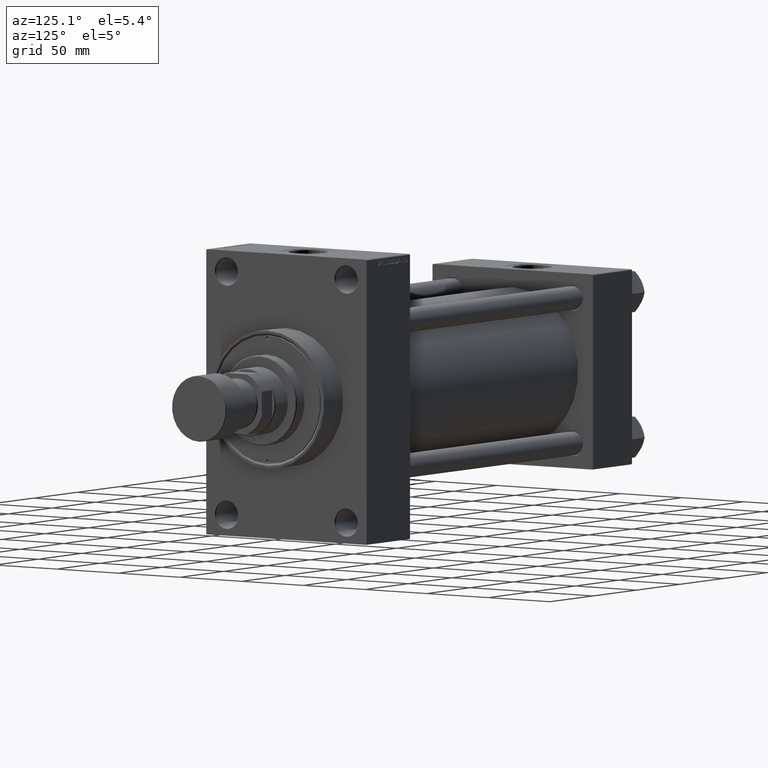
[diagram: clean part render]
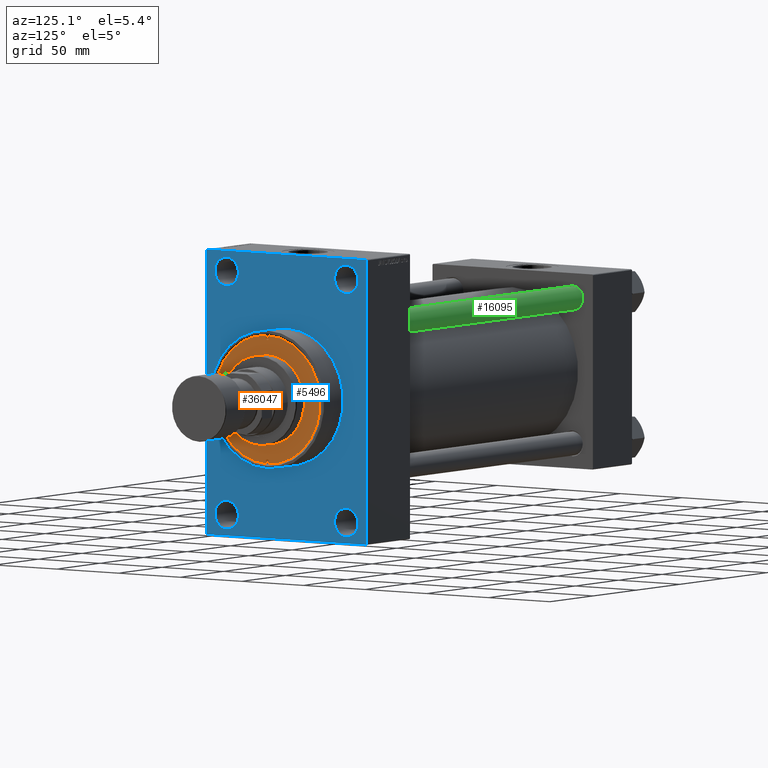
[diagram: same view with three faces highlighted in distinct colors, each labeled with its STEP entity id]
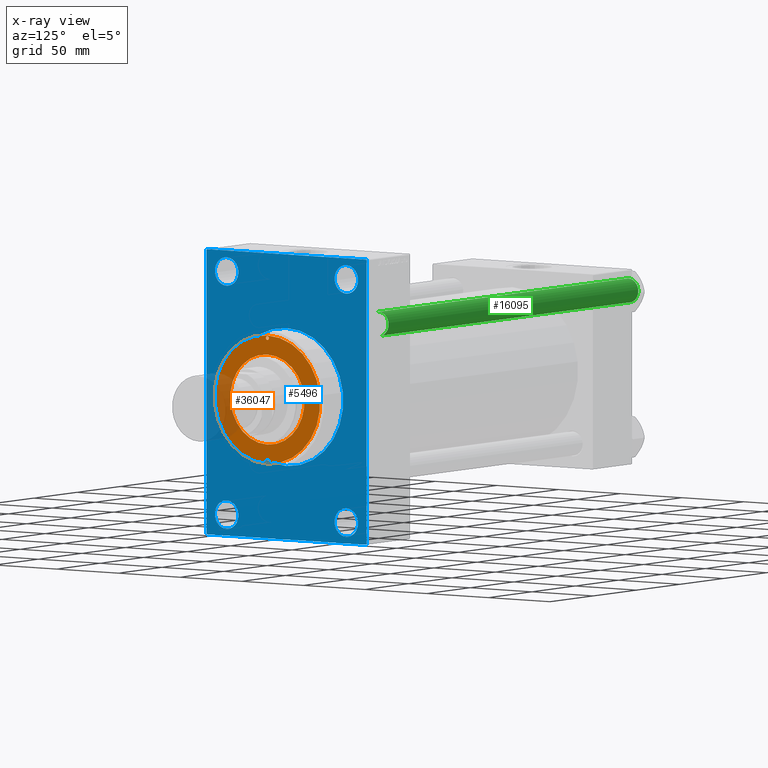
[diagram: x-ray of the same camera — body ghosted, the three highlighted faces saturated]
A machine part, auxiliary view with three faces highlighted in distinct colors.
The next image is the same camera in x-ray (body ghosted, the three faces saturated) — at least one of them is partly hidden behind the body in this view.
Their STEP definitions:

[orange] entity #36047 — the highlighted planar face has unit normal (1, -0, -0).
#758 = CARTESIAN_POINT ( 'NONE',  ( -42.75000000000000000, 0.000000000000000000, 43.25999999999999801 ) ) ;
#955 = DIRECTION ( 'NONE',  ( -0.000000000000000000, -0.000000000000000000, 1.000000000000000000 ) ) ;
#1060 = CARTESIAN_POINT ( 'NONE',  ( 42.75000000000000000, 5.235365066354935472E-15, 43.25999999999999801 ) ) ;
#1128 = AXIS2_PLACEMENT_3D ( 'NONE', #13668, #46889, #28569 ) ;
#1364 = VERTEX_POINT ( 'NONE', #25501 ) ;
#1803 = CARTESIAN_POINT ( 'NONE',  ( 41.00000000000000000, 0.000000000000000000, 43.25999999999999801 ) ) ;
#1909 = DIRECTION ( 'NONE',  ( 1.000000000000000000, 0.000000000000000000, 0.000000000000000000 ) ) ;
#2042 = AXIS2_PLACEMENT_3D ( 'NONE', #13963, #2969, #18339 ) ;
#2777 = DIRECTION ( 'NONE',  ( 0.000000000000000000, 0.000000000000000000, 1.000000000000000000 ) ) ;
#2969 = DIRECTION ( 'NONE',  ( -0.000000000000000000, -0.000000000000000000, 1.000000000000000000 ) ) ;
#3258 = CARTESIAN_POINT ( 'NONE',  ( 0.000000000000000000, 0.000000000000000000, 43.25999999999999801 ) ) ;
#3575 = AXIS2_PLACEMENT_3D ( 'NONE', #1803, #27951, #27716 ) ;
#4006 = CARTESIAN_POINT ( 'NONE',  ( -39.75000000000000000, 0.000000000000000000, 43.25999999999999801 ) ) ;
#4242 = ORIENTED_EDGE ( 'NONE', *, *, #18045, .F. ) ;
#4300 = CARTESIAN_POINT ( 'NONE',  ( -41.00000000000000000, 0.000000000000000000, 43.25999999999999801 ) ) ;
#6127 = CARTESIAN_POINT ( 'NONE',  ( 42.25000000000000000, 0.000000000000000000, 43.25999999999999801 ) ) ;
#7196 = EDGE_LOOP ( 'NONE', ( #18963, #24049 ) ) ;
#8270 = VERTEX_POINT ( 'NONE', #1060 ) ;
#8984 = ORIENTED_EDGE ( 'NONE', *, *, #13227, .T. ) ;
#9012 = CARTESIAN_POINT ( 'NONE',  ( 41.00000000000000000, 0.000000000000000000, 43.25999999999999801 ) ) ;
#10615 = CARTESIAN_POINT ( 'NONE',  ( -42.25000000000000000, 1.530808498934193050E-16, 43.25999999999999801 ) ) ;
#11150 = DIRECTION ( 'NONE',  ( -0.000000000000000000, -0.000000000000000000, 1.000000000000000000 ) ) ;
#11169 = FACE_OUTER_BOUND ( 'NONE', #26174, .T. ) ;
#11322 = EDGE_LOOP ( 'NONE', ( #31291, #38749 ) ) ;
#11348 = EDGE_CURVE ( 'NONE', #11502, #1364, #18217, .T. ) ;
#11502 = VERTEX_POINT ( 'NONE', #37741 ) ;
#12943 = CIRCLE ( 'NONE', #13722, 1.250000000000001110 ) ;
#13227 = EDGE_CURVE ( 'NONE', #8270, #36603, #15946, .T. ) ;
#13265 = VERTEX_POINT ( 'NONE', #24665 ) ;
#13668 = CARTESIAN_POINT ( 'NONE',  ( 0.000000000000000000, 0.000000000000000000, 43.25999999999999801 ) ) ;
#13722 = AXIS2_PLACEMENT_3D ( 'NONE', #4300, #11150, #15768 ) ;
#13963 = CARTESIAN_POINT ( 'NONE',  ( -41.00000000000000000, 0.000000000000000000, 43.25999999999999801 ) ) ;
#14315 = AXIS2_PLACEMENT_3D ( 'NONE', #44378, #33369, #25575 ) ;
#14403 = AXIS2_PLACEMENT_3D ( 'NONE', #3258, #2777, #22069 ) ;
#15768 = DIRECTION ( 'NONE',  ( 1.000000000000000000, 0.000000000000000000, 0.000000000000000000 ) ) ;
#15946 = CIRCLE ( 'NONE', #1128, 42.75000000000000000 ) ;
#16508 = EDGE_LOOP ( 'NONE', ( #4242, #46329 ) ) ;
#16816 = EDGE_CURVE ( 'NONE', #13265, #24211, #48045, .T. ) ;
#18045 = EDGE_CURVE ( 'NONE', #22878, #20358, #23103, .T. ) ;
#18169 = AXIS2_PLACEMENT_3D ( 'NONE', #37310, #24792, #36264 ) ;
#18217 = CIRCLE ( 'NONE', #14315, 30.00000000000000000 ) ;
#18339 = DIRECTION ( 'NONE',  ( 1.000000000000000000, 0.000000000000000000, 0.000000000000000000 ) ) ;
#18963 = ORIENTED_EDGE ( 'NONE', *, *, #43111, .F. ) ;
#20169 = EDGE_CURVE ( 'NONE', #20358, #22878, #12943, .T. ) ;
#20358 = VERTEX_POINT ( 'NONE', #10615 ) ;
#22069 = DIRECTION ( 'NONE',  ( 1.000000000000000000, 0.000000000000000000, 0.000000000000000000 ) ) ;
#22878 = VERTEX_POINT ( 'NONE', #4006 ) ;
#23103 = CIRCLE ( 'NONE', #2042, 1.250000000000001110 ) ;
#24049 = ORIENTED_EDGE ( 'NONE', *, *, #11348, .F. ) ;
#24211 = VERTEX_POINT ( 'NONE', #6127 ) ;
#24632 = DIRECTION ( 'NONE',  ( 0.000000000000000000, 0.000000000000000000, 1.000000000000000000 ) ) ;
#24665 = CARTESIAN_POINT ( 'NONE',  ( 39.75000000000000000, 1.530808498934193050E-16, 43.25999999999999801 ) ) ;
#24792 = DIRECTION ( 'NONE',  ( 0.000000000000000000, 0.000000000000000000, 1.000000000000000000 ) ) ;
#24956 = CIRCLE ( 'NONE', #32725, 1.250000000000001110 ) ;
#25501 = CARTESIAN_POINT ( 'NONE',  ( -30.00000000000000000, 0.000000000000000000, 43.25999999999999801 ) ) ;
#25575 = DIRECTION ( 'NONE',  ( 1.000000000000000000, 0.000000000000000000, 0.000000000000000000 ) ) ;
#26174 = EDGE_LOOP ( 'NONE', ( #37816, #8984 ) ) ;
#26989 = FACE_BOUND ( 'NONE', #16508, .T. ) ;
#27351 = DIRECTION ( 'NONE',  ( 1.000000000000000000, 0.000000000000000000, 0.000000000000000000 ) ) ;
#27716 = DIRECTION ( 'NONE',  ( 1.000000000000000000, 0.000000000000000000, 0.000000000000000000 ) ) ;
#27823 = CARTESIAN_POINT ( 'NONE',  ( 0.000000000000000000, 0.000000000000000000, 43.25999999999999801 ) ) ;
#27951 = DIRECTION ( 'NONE',  ( -0.000000000000000000, -0.000000000000000000, 1.000000000000000000 ) ) ;
#28569 = DIRECTION ( 'NONE',  ( 1.000000000000000000, 0.000000000000000000, 0.000000000000000000 ) ) ;
#29167 = EDGE_CURVE ( 'NONE', #24211, #13265, #24956, .T. ) ;
#31291 = ORIENTED_EDGE ( 'NONE', *, *, #29167, .F. ) ;
#32725 = AXIS2_PLACEMENT_3D ( 'NONE', #9012, #955, #27351 ) ;
#33369 = DIRECTION ( 'NONE',  ( 0.000000000000000000, 0.000000000000000000, 1.000000000000000000 ) ) ;
#36047 = ADVANCED_FACE ( 'NONE', ( #26989, #40735, #44651, #11169 ), #40980, .T. ) ;
#36264 = DIRECTION ( 'NONE',  ( 1.000000000000000000, 0.000000000000000000, -0.000000000000000000 ) ) ;
#36379 = CIRCLE ( 'NONE', #45762, 42.75000000000000000 ) ;
#36603 = VERTEX_POINT ( 'NONE', #758 ) ;
#37310 = CARTESIAN_POINT ( 'NONE',  ( 0.000000000000000000, 0.000000000000000000, 43.25999999999999801 ) ) ;
#37741 = CARTESIAN_POINT ( 'NONE',  ( 30.00000000000000000, 3.673940397442059178E-15, 43.25999999999999801 ) ) ;
#37816 = ORIENTED_EDGE ( 'NONE', *, *, #47440, .T. ) ;
#38749 = ORIENTED_EDGE ( 'NONE', *, *, #16816, .F. ) ;
#40735 = FACE_BOUND ( 'NONE', #11322, .T. ) ;
#40980 = PLANE ( 'NONE',  #18169 ) ;
#43111 = EDGE_CURVE ( 'NONE', #1364, #11502, #44830, .T. ) ;
#44378 = CARTESIAN_POINT ( 'NONE',  ( 0.000000000000000000, 0.000000000000000000, 43.25999999999999801 ) ) ;
#44651 = FACE_BOUND ( 'NONE', #7196, .T. ) ;
#44830 = CIRCLE ( 'NONE', #14403, 30.00000000000000000 ) ;
#45762 = AXIS2_PLACEMENT_3D ( 'NONE', #27823, #24632, #1909 ) ;
#46329 = ORIENTED_EDGE ( 'NONE', *, *, #20169, .F. ) ;
#46889 = DIRECTION ( 'NONE',  ( 0.000000000000000000, 0.000000000000000000, 1.000000000000000000 ) ) ;
#47440 = EDGE_CURVE ( 'NONE', #36603, #8270, #36379, .T. ) ;
#48045 = CIRCLE ( 'NONE', #3575, 1.250000000000001110 ) ;

[blue] entity #5496 — the highlighted planar face has unit normal (-1, 0, 0).
#259 = CARTESIAN_POINT ( 'NONE',  ( 306.0000000000000000, 48.50000000000000711, 81.00000000000000000 ) ) ;
#336 = EDGE_CURVE ( 'NONE', #5227, #39832, #821, .T. ) ;
#542 = LINE ( 'NONE', #41351, #43114 ) ;
#559 = CARTESIAN_POINT ( 'NONE',  ( 306.0000000000000000, -65.00000000000001421, 94.49999999999997158 ) ) ;
#821 = LINE ( 'NONE', #9120, #44892 ) ;
#1288 = EDGE_CURVE ( 'NONE', #29335, #1978, #37866, .T. ) ;
#1651 = DIRECTION ( 'NONE',  ( -1.000000000000000000, 0.000000000000000000, -0.000000000000000000 ) ) ;
#1661 = VERTEX_POINT ( 'NONE', #31547 ) ;
#1978 = VERTEX_POINT ( 'NONE', #33828 ) ;
#2229 = EDGE_CURVE ( 'NONE', #26443, #24973, #28184, .T. ) ;
#2326 = VERTEX_POINT ( 'NONE', #33542 ) ;
#2391 = DIRECTION ( 'NONE',  ( 0.000000000000000000, 7.304098846218135653E-17, -1.000000000000000000 ) ) ;
#2557 = ORIENTED_EDGE ( 'NONE', *, *, #33746, .T. ) ;
#3421 = AXIS2_PLACEMENT_3D ( 'NONE', #24854, #1651, #16546 ) ;
#3679 = CIRCLE ( 'NONE', #30946, 9.500000000000063949 ) ;
#3871 = AXIS2_PLACEMENT_3D ( 'NONE', #42304, #16402, #35207 ) ;
#4086 = CARTESIAN_POINT ( 'NONE',  ( 306.0000000000000000, 48.50000000000000711, 71.49999999999994316 ) ) ;
#4454 = DIRECTION ( 'NONE',  ( 0.000000000000000000, 0.7071067811865868746, -0.7071067811865081598 ) ) ;
#5227 = VERTEX_POINT ( 'NONE', #40706 ) ;
#5317 = CIRCLE ( 'NONE', #28712, 9.500000000000063949 ) ;
#5380 = AXIS2_PLACEMENT_3D ( 'NONE', #26448, #7383, #18616 ) ;
#5496 = ADVANCED_FACE ( 'NONE', ( #28940, #10362, #25284, #6704, #21850, #17203 ), #32116, .F. ) ;
#5914 = DIRECTION ( 'NONE',  ( -0.000000000000000000, 0.7071067811865573427, 0.7071067811865378028 ) ) ;
#6301 = VERTEX_POINT ( 'NONE', #37827 ) ;
#6356 = CARTESIAN_POINT ( 'NONE',  ( 306.0000000000000000, 48.50000000000000711, -81.00000000000001421 ) ) ;
#6424 = CARTESIAN_POINT ( 'NONE',  ( 306.0000000000000000, 48.50000000000000711, -81.00000000000001421 ) ) ;
#6455 = CIRCLE ( 'NONE', #33764, 9.500000000000119016 ) ;
#6460 = DIRECTION ( 'NONE',  ( -0.000000000000000000, 0.000000000000000000, 1.000000000000000000 ) ) ;
#6704 = FACE_BOUND ( 'NONE', #45298, .T. ) ;
#7084 = ORIENTED_EDGE ( 'NONE', *, *, #27921, .F. ) ;
#7230 = EDGE_CURVE ( 'NONE', #36371, #6301, #10192, .T. ) ;
#7294 = CARTESIAN_POINT ( 'NONE',  ( 306.0000000000000000, -64.50000000000001421, -95.00000000000002842 ) ) ;
#7383 = DIRECTION ( 'NONE',  ( 1.000000000000000000, 0.000000000000000000, 0.000000000000000000 ) ) ;
#7925 = CARTESIAN_POINT ( 'NONE',  ( 306.0000000000000000, 48.50000000000000711, -71.49999999999990052 ) ) ;
#8234 = VECTOR ( 'NONE', #5914, 1000.000000000000000 ) ;
#8351 = DIRECTION ( 'NONE',  ( 0.000000000000000000, 0.000000000000000000, 1.000000000000000000 ) ) ;
#8395 = EDGE_LOOP ( 'NONE', ( #8439, #18632 ) ) ;
#8439 = ORIENTED_EDGE ( 'NONE', *, *, #23172, .T. ) ;
#8979 = DIRECTION ( 'NONE',  ( 0.000000000000000000, -0.7071067811865868746, 0.7071067811865081598 ) ) ;
#9120 = CARTESIAN_POINT ( 'NONE',  ( 306.0000000000000000, 64.99999999999998579, -95.00000000000001421 ) ) ;
#9689 = LINE ( 'NONE', #46360, #20426 ) ;
#9715 = AXIS2_PLACEMENT_3D ( 'NONE', #35997, #25512, #25753 ) ;
#9980 = EDGE_CURVE ( 'NONE', #24973, #39832, #542, .T. ) ;
#10118 = DIRECTION ( 'NONE',  ( -1.000000000000000000, 0.000000000000000000, -0.000000000000000000 ) ) ;
#10192 = LINE ( 'NONE', #24380, #32214 ) ;
#10362 = FACE_BOUND ( 'NONE', #32818, .T. ) ;
#10884 = CIRCLE ( 'NONE', #3871, 9.500000000000119016 ) ;
#12366 = ORIENTED_EDGE ( 'NONE', *, *, #1288, .T. ) ;
#13324 = CIRCLE ( 'NONE', #27391, 9.500000000000119016 ) ;
#13444 = AXIS2_PLACEMENT_3D ( 'NONE', #13799, #10118, #6460 ) ;
#13741 = CARTESIAN_POINT ( 'NONE',  ( 306.0000000000000000, 64.99999999999998579, -94.50000000000002842 ) ) ;
#13799 = CARTESIAN_POINT ( 'NONE',  ( 306.0000000000000000, 0.000000000000000000, 0.000000000000000000 ) ) ;
#13913 = CARTESIAN_POINT ( 'NONE',  ( 306.0000000000000000, 5.633375276077824704E-15, -46.00000000000000000 ) ) ;
#14357 = VERTEX_POINT ( 'NONE', #44620 ) ;
#14416 = DIRECTION ( 'NONE',  ( -1.000000000000000000, 0.000000000000000000, -0.000000000000000000 ) ) ;
#14710 = CARTESIAN_POINT ( 'NONE',  ( 306.0000000000000000, -48.50000000000000000, 81.00000000000000000 ) ) ;
#15177 = CARTESIAN_POINT ( 'NONE',  ( 306.0000000000000000, 0.000000000000000000, 0.000000000000000000 ) ) ;
#15401 = DIRECTION ( 'NONE',  ( -1.000000000000000000, 0.000000000000000000, -0.000000000000000000 ) ) ;
#15794 = AXIS2_PLACEMENT_3D ( 'NONE', #15177, #26198, #26435 ) ;
#16035 = AXIS2_PLACEMENT_3D ( 'NONE', #6424, #42839, #32079 ) ;
#16402 = DIRECTION ( 'NONE',  ( -1.000000000000000000, 0.000000000000000000, -0.000000000000000000 ) ) ;
#16419 = LINE ( 'NONE', #559, #29348 ) ;
#16546 = DIRECTION ( 'NONE',  ( 0.000000000000000000, 0.000000000000000000, 1.000000000000000000 ) ) ;
#16667 = VERTEX_POINT ( 'NONE', #17962 ) ;
#17203 = FACE_OUTER_BOUND ( 'NONE', #31287, .T. ) ;
#17629 = CARTESIAN_POINT ( 'NONE',  ( 306.0000000000000000, -65.00000000000001421, 94.49999999999997158 ) ) ;
#17962 = CARTESIAN_POINT ( 'NONE',  ( 306.0000000000000000, -48.50000000000000000, 71.49999999999994316 ) ) ;
#18012 = VERTEX_POINT ( 'NONE', #40819 ) ;
#18428 = VERTEX_POINT ( 'NONE', #41003 ) ;
#18616 = DIRECTION ( 'NONE',  ( 0.000000000000000000, 0.000000000000000000, -1.000000000000000000 ) ) ;
#18632 = ORIENTED_EDGE ( 'NONE', *, *, #41050, .T. ) ;
#19736 = EDGE_CURVE ( 'NONE', #5227, #6301, #39387, .T. ) ;
#20426 = VECTOR ( 'NONE', #8979, 1000.000000000000000 ) ;
#21410 = CIRCLE ( 'NONE', #9715, 9.500000000000063949 ) ;
#21850 = FACE_BOUND ( 'NONE', #47215, .T. ) ;
#22344 = EDGE_CURVE ( 'NONE', #14357, #2326, #41090, .T. ) ;
#23055 = CARTESIAN_POINT ( 'NONE',  ( 306.0000000000000000, -48.49999999999999289, -71.49999999999990052 ) ) ;
#23172 = EDGE_CURVE ( 'NONE', #16667, #39279, #3679, .T. ) ;
#23987 = ORIENTED_EDGE ( 'NONE', *, *, #9980, .T. ) ;
#24136 = ORIENTED_EDGE ( 'NONE', *, *, #19736, .T. ) ;
#24376 = CIRCLE ( 'NONE', #15794, 46.00000000000000000 ) ;
#24380 = CARTESIAN_POINT ( 'NONE',  ( 306.0000000000000000, 64.99999999999997158, 94.99999999999997158 ) ) ;
#24854 = CARTESIAN_POINT ( 'NONE',  ( 306.0000000000000000, -48.50000000000000000, 81.00000000000000000 ) ) ;
#24973 = VERTEX_POINT ( 'NONE', #33363 ) ;
#25284 = FACE_BOUND ( 'NONE', #42720, .T. ) ;
#25512 = DIRECTION ( 'NONE',  ( -1.000000000000000000, 0.000000000000000000, -0.000000000000000000 ) ) ;
#25753 = DIRECTION ( 'NONE',  ( 0.000000000000000000, 0.000000000000000000, 1.000000000000000000 ) ) ;
#25818 = EDGE_CURVE ( 'NONE', #18012, #42900, #5317, .T. ) ;
#25952 = DIRECTION ( 'NONE',  ( 0.000000000000000000, -1.000000000000000000, 0.000000000000000000 ) ) ;
#26092 = VERTEX_POINT ( 'NONE', #13913 ) ;
#26198 = DIRECTION ( 'NONE',  ( 1.000000000000000000, 0.000000000000000000, 0.000000000000000000 ) ) ;
#26319 = ORIENTED_EDGE ( 'NONE', *, *, #25818, .T. ) ;
#26435 = DIRECTION ( 'NONE',  ( 0.000000000000000000, 0.000000000000000000, -1.000000000000000000 ) ) ;
#26443 = VERTEX_POINT ( 'NONE', #17629 ) ;
#26448 = CARTESIAN_POINT ( 'NONE',  ( 306.0000000000000000, 0.000000000000000000, 0.000000000000000000 ) ) ;
#26675 = DIRECTION ( 'NONE',  ( 0.000000000000000000, 0.000000000000000000, 1.000000000000000000 ) ) ;
#26979 = DIRECTION ( 'NONE',  ( 0.000000000000000000, -1.000000000000000000, -1.067522139062650425E-16 ) ) ;
#27200 = DIRECTION ( 'NONE',  ( -0.000000000000000000, -0.7071067811864985009, -0.7071067811865965336 ) ) ;
#27391 = AXIS2_PLACEMENT_3D ( 'NONE', #42544, #38875, #8351 ) ;
#27637 = VERTEX_POINT ( 'NONE', #23055 ) ;
#27845 = VECTOR ( 'NONE', #25952, 1000.000000000000000 ) ;
#27921 = EDGE_CURVE ( 'NONE', #26092, #18428, #41304, .T. ) ;
#28184 = LINE ( 'NONE', #36242, #34801 ) ;
#28712 = AXIS2_PLACEMENT_3D ( 'NONE', #259, #15401, #34440 ) ;
#28905 = EDGE_CURVE ( 'NONE', #27637, #1661, #10884, .T. ) ;
#28940 = FACE_BOUND ( 'NONE', #8395, .T. ) ;
#29335 = VERTEX_POINT ( 'NONE', #7925 ) ;
#29348 = VECTOR ( 'NONE', #27200, 1000.000000000000114 ) ;
#30624 = CARTESIAN_POINT ( 'NONE',  ( 306.0000000000000000, 64.99999999999997158, 94.50000000000002842 ) ) ;
#30855 = CARTESIAN_POINT ( 'NONE',  ( 306.0000000000000000, -48.50000000000000000, 90.50000000000007105 ) ) ;
#30946 = AXIS2_PLACEMENT_3D ( 'NONE', #14710, #47952, #26675 ) ;
#30999 = ORIENTED_EDGE ( 'NONE', *, *, #34637, .F. ) ;
#31287 = EDGE_LOOP ( 'NONE', ( #35139, #23987, #46039, #24136, #37474, #2557, #48166, #37128 ) ) ;
#31496 = EDGE_CURVE ( 'NONE', #1661, #27637, #13324, .T. ) ;
#31547 = CARTESIAN_POINT ( 'NONE',  ( 306.0000000000000000, -48.49999999999999289, -90.50000000000014211 ) ) ;
#32079 = DIRECTION ( 'NONE',  ( 0.000000000000000000, 0.000000000000000000, 1.000000000000000000 ) ) ;
#32116 = PLANE ( 'NONE',  #13444 ) ;
#32214 = VECTOR ( 'NONE', #2391, 1000.000000000000000 ) ;
#32818 = EDGE_LOOP ( 'NONE', ( #41488, #47576 ) ) ;
#33363 = CARTESIAN_POINT ( 'NONE',  ( 306.0000000000000000, -65.00000000000001421, -94.50000000000008527 ) ) ;
#33542 = CARTESIAN_POINT ( 'NONE',  ( 306.0000000000000000, -64.50000000000008527, 94.99999999999997158 ) ) ;
#33746 = EDGE_CURVE ( 'NONE', #36371, #14357, #9689, .T. ) ;
#33764 = AXIS2_PLACEMENT_3D ( 'NONE', #6356, #14416, #39592 ) ;
#33828 = CARTESIAN_POINT ( 'NONE',  ( 306.0000000000000000, 48.50000000000000711, -90.50000000000014211 ) ) ;
#34271 = ORIENTED_EDGE ( 'NONE', *, *, #35645, .T. ) ;
#34440 = DIRECTION ( 'NONE',  ( 0.000000000000000000, 0.000000000000000000, 1.000000000000000000 ) ) ;
#34637 = EDGE_CURVE ( 'NONE', #18428, #26092, #24376, .T. ) ;
#34801 = VECTOR ( 'NONE', #43330, 1000.000000000000000 ) ;
#35139 = ORIENTED_EDGE ( 'NONE', *, *, #2229, .T. ) ;
#35207 = DIRECTION ( 'NONE',  ( 0.000000000000000000, 0.000000000000000000, 1.000000000000000000 ) ) ;
#35645 = EDGE_CURVE ( 'NONE', #1978, #29335, #6455, .T. ) ;
#35997 = CARTESIAN_POINT ( 'NONE',  ( 306.0000000000000000, 48.50000000000000711, 81.00000000000000000 ) ) ;
#36242 = CARTESIAN_POINT ( 'NONE',  ( 306.0000000000000000, -65.00000000000001421, 94.99999999999997158 ) ) ;
#36371 = VERTEX_POINT ( 'NONE', #30624 ) ;
#37128 = ORIENTED_EDGE ( 'NONE', *, *, #46548, .T. ) ;
#37411 = CARTESIAN_POINT ( 'NONE',  ( 306.0000000000000000, 64.99999999999997158, 94.99999999999997158 ) ) ;
#37474 = ORIENTED_EDGE ( 'NONE', *, *, #7230, .F. ) ;
#37827 = CARTESIAN_POINT ( 'NONE',  ( 306.0000000000000000, 64.99999999999998579, -94.50000000000002842 ) ) ;
#37866 = CIRCLE ( 'NONE', #16035, 9.500000000000119016 ) ;
#38875 = DIRECTION ( 'NONE',  ( -1.000000000000000000, 0.000000000000000000, -0.000000000000000000 ) ) ;
#39279 = VERTEX_POINT ( 'NONE', #30855 ) ;
#39387 = LINE ( 'NONE', #13741, #8234 ) ;
#39592 = DIRECTION ( 'NONE',  ( 0.000000000000000000, 0.000000000000000000, 1.000000000000000000 ) ) ;
#39832 = VERTEX_POINT ( 'NONE', #7294 ) ;
#40706 = CARTESIAN_POINT ( 'NONE',  ( 306.0000000000000000, 64.49999999999998579, -95.00000000000001421 ) ) ;
#40819 = CARTESIAN_POINT ( 'NONE',  ( 306.0000000000000000, 48.50000000000000711, 90.50000000000007105 ) ) ;
#41003 = CARTESIAN_POINT ( 'NONE',  ( 306.0000000000000000, 0.000000000000000000, 46.00000000000000000 ) ) ;
#41050 = EDGE_CURVE ( 'NONE', #39279, #16667, #45550, .T. ) ;
#41090 = LINE ( 'NONE', #37411, #27845 ) ;
#41304 = CIRCLE ( 'NONE', #5380, 46.00000000000000000 ) ;
#41351 = CARTESIAN_POINT ( 'NONE',  ( 306.0000000000000000, -64.50000000000001421, -95.00000000000002842 ) ) ;
#41488 = ORIENTED_EDGE ( 'NONE', *, *, #31496, .T. ) ;
#42304 = CARTESIAN_POINT ( 'NONE',  ( 306.0000000000000000, -48.49999999999999289, -81.00000000000001421 ) ) ;
#42544 = CARTESIAN_POINT ( 'NONE',  ( 306.0000000000000000, -48.49999999999999289, -81.00000000000001421 ) ) ;
#42720 = EDGE_LOOP ( 'NONE', ( #34271, #12366 ) ) ;
#42839 = DIRECTION ( 'NONE',  ( -1.000000000000000000, 0.000000000000000000, -0.000000000000000000 ) ) ;
#42900 = VERTEX_POINT ( 'NONE', #4086 ) ;
#43114 = VECTOR ( 'NONE', #4454, 1000.000000000000000 ) ;
#43148 = EDGE_CURVE ( 'NONE', #42900, #18012, #21410, .T. ) ;
#43330 = DIRECTION ( 'NONE',  ( 0.000000000000000000, 0.000000000000000000, -1.000000000000000000 ) ) ;
#44620 = CARTESIAN_POINT ( 'NONE',  ( 306.0000000000000000, 64.49999999999997158, 94.99999999999997158 ) ) ;
#44892 = VECTOR ( 'NONE', #26979, 1000.000000000000000 ) ;
#45298 = EDGE_LOOP ( 'NONE', ( #47080, #26319 ) ) ;
#45550 = CIRCLE ( 'NONE', #3421, 9.500000000000063949 ) ;
#46039 = ORIENTED_EDGE ( 'NONE', *, *, #336, .F. ) ;
#46360 = CARTESIAN_POINT ( 'NONE',  ( 306.0000000000000000, 64.49999999999997158, 94.99999999999997158 ) ) ;
#46548 = EDGE_CURVE ( 'NONE', #2326, #26443, #16419, .T. ) ;
#47080 = ORIENTED_EDGE ( 'NONE', *, *, #43148, .T. ) ;
#47215 = EDGE_LOOP ( 'NONE', ( #30999, #7084 ) ) ;
#47576 = ORIENTED_EDGE ( 'NONE', *, *, #28905, .T. ) ;
#47952 = DIRECTION ( 'NONE',  ( -1.000000000000000000, 0.000000000000000000, -0.000000000000000000 ) ) ;
#48166 = ORIENTED_EDGE ( 'NONE', *, *, #22344, .T. ) ;

[green] entity #16095 — the highlighted cylindrical surface (edge-blend (fillet) strip) has radius 8 mm, axis along (-1, -0, 0).
#2032 = VERTEX_POINT ( 'NONE', #7034 ) ;
#2878 = CARTESIAN_POINT ( 'NONE',  ( 8.000000000000000000, 9.797174393178825657E-16, 289.0000000000000000 ) ) ;
#5955 = EDGE_CURVE ( 'NONE', #2032, #23909, #24396, .T. ) ;
#7034 = CARTESIAN_POINT ( 'NONE',  ( 8.000000000000000000, 9.797174393178825657E-16, 0.5000000000000004441 ) ) ;
#7579 = DIRECTION ( 'NONE',  ( -0.000000000000000000, -0.000000000000000000, -1.000000000000000000 ) ) ;
#7724 = CARTESIAN_POINT ( 'NONE',  ( 0.000000000000000000, 0.000000000000000000, 288.5000000000000000 ) ) ;
#9489 = CARTESIAN_POINT ( 'NONE',  ( 8.000000000000000000, 9.797174393178825657E-16, 288.5000000000000000 ) ) ;
#10735 = DIRECTION ( 'NONE',  ( -0.000000000000000000, -0.000000000000000000, -1.000000000000000000 ) ) ;
#11344 = VERTEX_POINT ( 'NONE', #9489 ) ;
#13134 = ORIENTED_EDGE ( 'NONE', *, *, #21160, .T. ) ;
#14327 = AXIS2_PLACEMENT_3D ( 'NONE', #7724, #22633, #15054 ) ;
#14348 = LINE ( 'NONE', #2878, #46504 ) ;
#15054 = DIRECTION ( 'NONE',  ( 1.000000000000000000, 0.000000000000000000, 0.000000000000000000 ) ) ;
#15174 = DIRECTION ( 'NONE',  ( 1.000000000000000000, 0.000000000000000000, 0.000000000000000000 ) ) ;
#15359 = CYLINDRICAL_SURFACE ( 'NONE', #40224, 8.000000000000000000 ) ;
#16095 = ADVANCED_FACE ( 'NONE', ( #21742 ), #15359, .T. ) ;
#18086 = LINE ( 'NONE', #41054, #30972 ) ;
#18200 = CARTESIAN_POINT ( 'NONE',  ( -8.000000000000000000, 0.000000000000000000, 0.5000000000000004441 ) ) ;
#18543 = EDGE_LOOP ( 'NONE', ( #32622, #13134, #33540, #28460 ) ) ;
#21160 = EDGE_CURVE ( 'NONE', #11344, #2032, #14348, .T. ) ;
#21742 = FACE_OUTER_BOUND ( 'NONE', #18543, .T. ) ;
#22633 = DIRECTION ( 'NONE',  ( 0.000000000000000000, 0.000000000000000000, -1.000000000000000000 ) ) ;
#23909 = VERTEX_POINT ( 'NONE', #18200 ) ;
#24396 = CIRCLE ( 'NONE', #39976, 8.000000000000000000 ) ;
#26037 = CIRCLE ( 'NONE', #14327, 8.000000000000000000 ) ;
#26324 = DIRECTION ( 'NONE',  ( -0.000000000000000000, -0.000000000000000000, -1.000000000000000000 ) ) ;
#28460 = ORIENTED_EDGE ( 'NONE', *, *, #48204, .F. ) ;
#29560 = VERTEX_POINT ( 'NONE', #39897 ) ;
#30972 = VECTOR ( 'NONE', #7579, 1000.000000000000000 ) ;
#32622 = ORIENTED_EDGE ( 'NONE', *, *, #41271, .T. ) ;
#33540 = ORIENTED_EDGE ( 'NONE', *, *, #5955, .T. ) ;
#39897 = CARTESIAN_POINT ( 'NONE',  ( -8.000000000000000000, 0.000000000000000000, 288.5000000000000000 ) ) ;
#39976 = AXIS2_PLACEMENT_3D ( 'NONE', #41087, #48177, #15174 ) ;
#40224 = AXIS2_PLACEMENT_3D ( 'NONE', #44464, #10735, #44225 ) ;
#41054 = CARTESIAN_POINT ( 'NONE',  ( -8.000000000000000000, 0.000000000000000000, 289.0000000000000000 ) ) ;
#41087 = CARTESIAN_POINT ( 'NONE',  ( 0.000000000000000000, 0.000000000000000000, 0.5000000000000004441 ) ) ;
#41271 = EDGE_CURVE ( 'NONE', #29560, #11344, #26037, .T. ) ;
#44225 = DIRECTION ( 'NONE',  ( -1.000000000000000000, 0.000000000000000000, 0.000000000000000000 ) ) ;
#44464 = CARTESIAN_POINT ( 'NONE',  ( 0.000000000000000000, 0.000000000000000000, 289.0000000000000000 ) ) ;
#46504 = VECTOR ( 'NONE', #26324, 1000.000000000000000 ) ;
#48177 = DIRECTION ( 'NONE',  ( -0.000000000000000000, -0.000000000000000000, 1.000000000000000000 ) ) ;
#48204 = EDGE_CURVE ( 'NONE', #29560, #23909, #18086, .T. ) ;